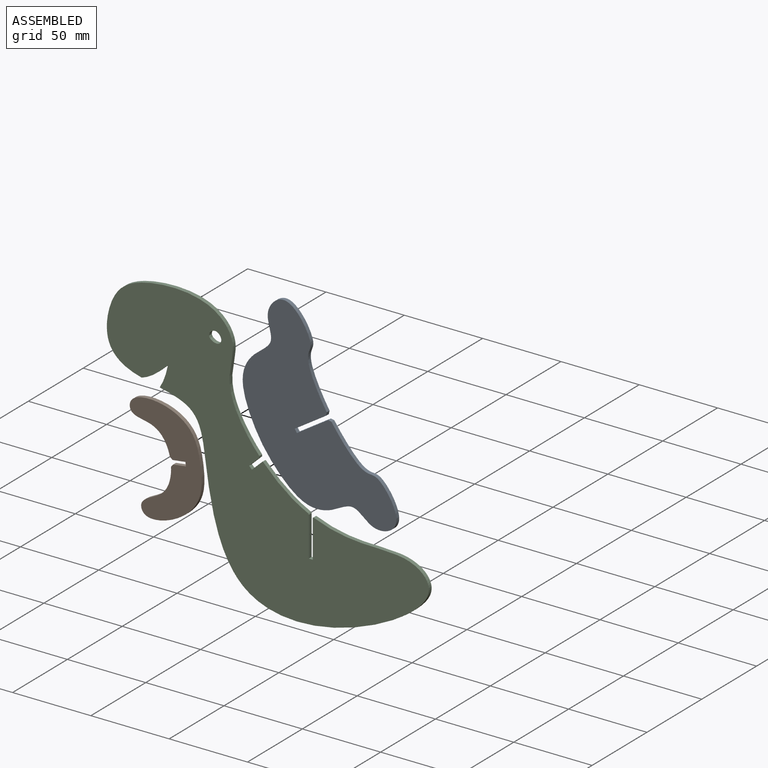
[diagram: assembled view]
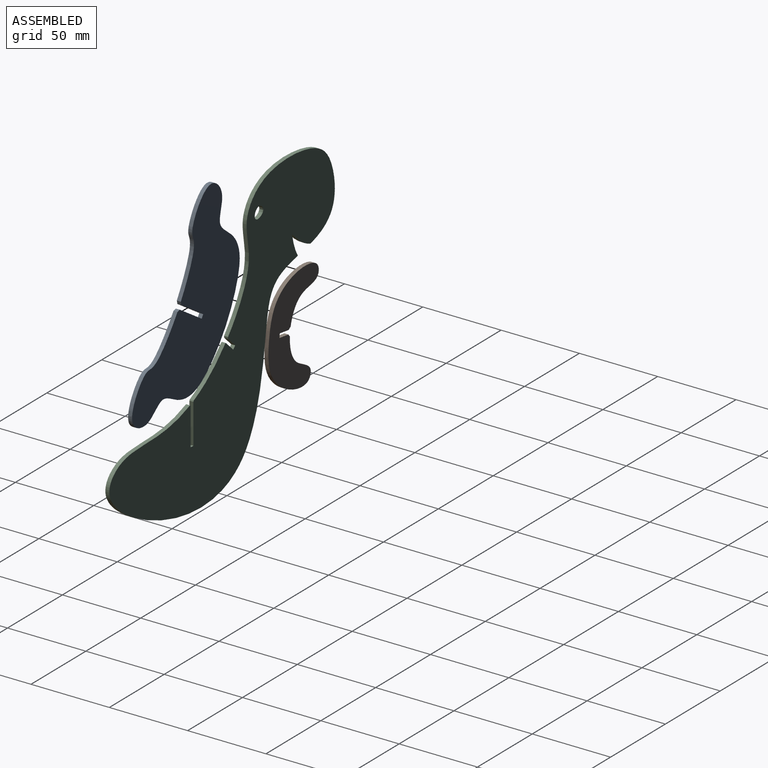
[diagram: assembled view, second angle]
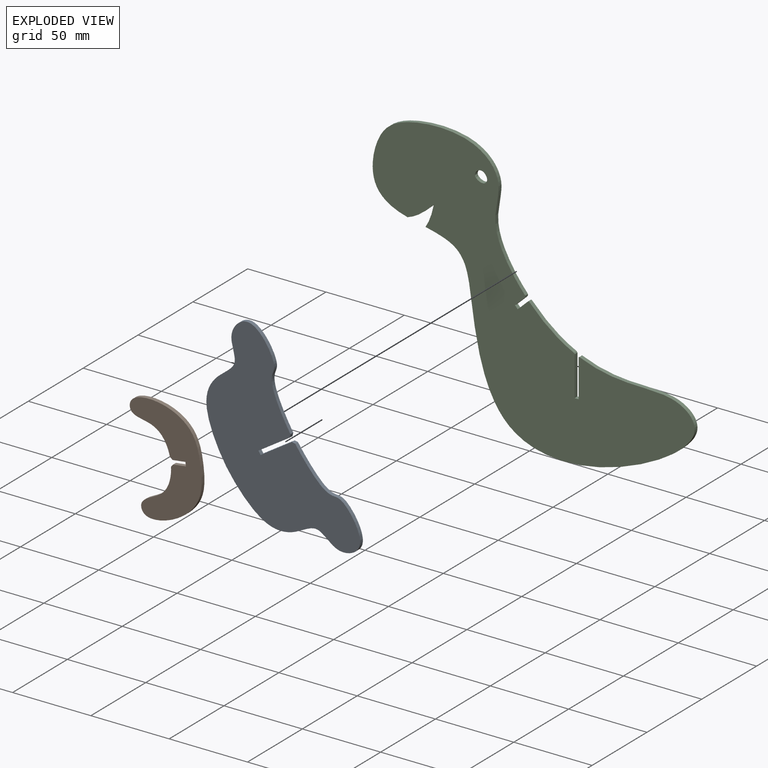
[diagram: exploded view]
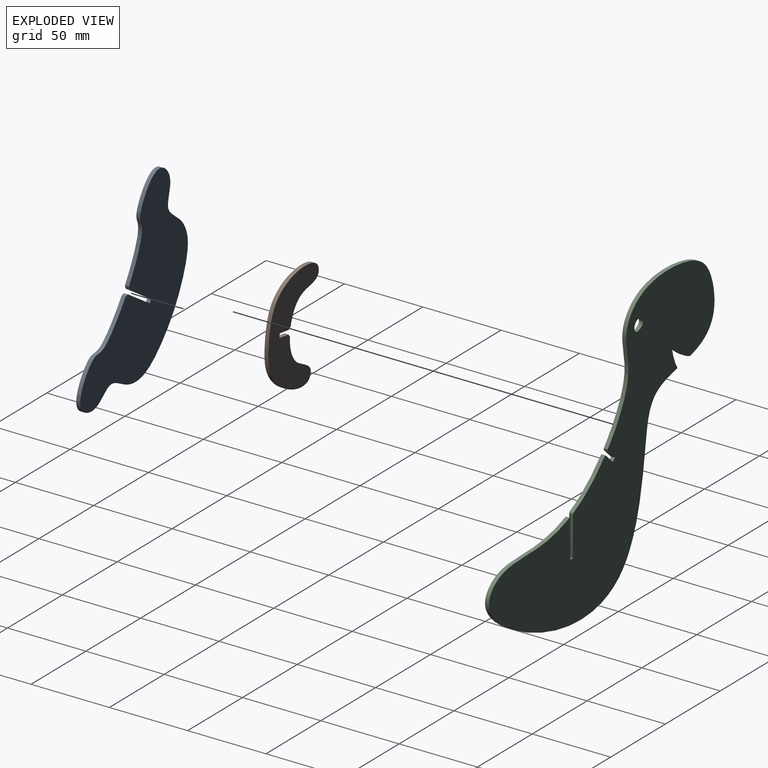
[diagram: exploded view, second angle]
ASSEMBLY  parts=3 mates=2
PART A: 9 faces, bbox 2.5x136.6x64.5 mm
  f0: plane 23.73x2.54mm, normal (0,1,0), area 60.3mm2, adj f1,f3,f4,f7
  f1: plane 2.54x2.54mm, normal (0,0,-1), area 6.5mm2, adj f0,f3,f4,f5
  f2: extruded ~67.17x63.48mm, area 433.2mm2, adj f3,f4,f6,f7
  f3: plane 136.6x64.51mm, normal (1,0,0), area 5378.2mm2, adj f0,f1,f2,f5,f6,f7,f8
  f4: plane 136.6x64.51mm, normal (-1,0,0), area 5378.2mm2, adj f0,f1,f2,f5,f6,f7,f8
  f5: plane 23.73x2.54mm, normal (0,-1,0), area 60.3mm2, adj f1,f3,f4,f8
  f6: extruded ~67.17x63.48mm, area 433.2mm2, adj f2,f3,f4,f8
  f7: plane 2.54x1.54mm, normal (0,0.72,-0.7), area 5.5mm2, adj f0,f2,f3,f4
  f8: plane 2.54x1.54mm, normal (0,-0.72,-0.7), area 5.5mm2, adj f3,f4,f5,f6
PART B: 9 faces, bbox 32.7x70.1x31.3 mm
  f0: plane 2.54x1.84mm, normal (-0.72,0,-0.69), area 6.5mm2, adj f1,f3,f4,f5
  f1: plane 7.69x7.5mm, normal (0,1,0), area 20.8mm2, adj f0,f3,f4,f8
  f2: extruded ~34.48x32.08mm, area 262mm2, adj f3,f4,f6,f8
  f3: plane 70.07x30.9mm, normal (-0.69,0,0.72), area 1571.6mm2, adj f0,f1,f2,f5,f6,f7,f8
  f4: plane 70.07x30.9mm, normal (0.69,0,-0.72), area 1571.6mm2, adj f0,f1,f2,f5,f6,f7,f8
  f5: plane 7.69x7.5mm, normal (0,-1,0), area 20.8mm2, adj f0,f3,f4,f7
  f6: extruded ~34.48x32.08mm, area 262mm2, adj f2,f3,f4,f7
  f7: plane 2.93x2.9mm, normal (-0.49,-0.74,-0.47), area 5.4mm2, adj f3,f4,f5,f6
  f8: plane 2.93x2.9mm, normal (-0.49,0.74,-0.47), area 5.4mm2, adj f1,f2,f3,f4
PART C: 18 faces, bbox 208.9x2.5x174.8 mm
  f0: extruded ~97.38x82.57mm, area 536.2mm2, adj f1,f2,f13,f15
  f1: plane 208.85x174.79mm, normal (0,-1,0), area 12645.5mm2, adj f0,f3,f4,f5,f6,f7,f8,f9
  f2: plane 208.85x174.79mm, normal (0,1,0), area 12645.5mm2, adj f0,f3,f4,f5,f6,f7,f8,f9
  f3: extruded ~28.71x21.92mm, area 92.3mm2, adj f1,f2,f11,f14
  f4: extruded ~171.54x111.63mm, area 860.6mm2, adj f1,f2,f12,f16
  f5: plane 6.48x6.18mm, normal (0.69,0,-0.72), area 22.7mm2, adj f1,f2,f6,f13
  f6: plane 2.54x1.84mm, normal (0.72,0,0.69), area 6.5mm2, adj f1,f2,f5,f7
  f7: plane 6.72x6.41mm, normal (-0.69,0,0.72), area 23.6mm2, adj f1,f2,f6,f11
  f8: plane 25.31x2.54mm, normal (1,0,0), area 64.3mm2, adj f1,f2,f9,f14
  f9: plane 2.54x2.54mm, normal (0,0,1), area 6.5mm2, adj f1,f2,f8,f10
  f10: plane 24.18x2.54mm, normal (-1,0,0), area 61.4mm2, adj f1,f2,f9,f12
  f11: plane 2.54x0.48mm, normal (0.03,0,1), area 1.2mm2, adj f1,f2,f3,f7
  f12: plane 2.54x0.47mm, normal (-0.55,0,0.83), area 1.4mm2, adj f1,f2,f4,f10
  f13: plane 2.54x1.1mm, normal (1,0,-0.05), area 2.8mm2, adj f0,f1,f2,f5
  f14: plane 2.54x0.72mm, normal (0.85,0,0.53), area 2.2mm2, adj f1,f2,f3,f8
  f15: extruded ~16.79x11.65mm, area 52.4mm2, adj f0,f1,f2,f16
  f16: extruded ~14.2x5.3mm, area 38.7mm2, adj f1,f2,f4,f15
  f17: extruded ~7.79x7.02mm, area 58.5mm2, adj f1,f2
PLACE A rot(axis=(-0.66,-0.66,0.36),140.4deg) t=(-6.79,-28.96,12.49)mm fixed
PLACE B rot(axis=(0.86,0.3,0.41),95.5deg) t=(-41.08,9.66,-4.12)mm fixed
PLACE C t=(5.18,1.27,0.78)mm
MATE planar B.f3 <-> C.f1  axis (0,-1,0) through (-44.49,0,-4.56)mm
MATE planar A.f4 <-> C.f1  axis (0,-1,0) through (25.84,0,33.45)mm
